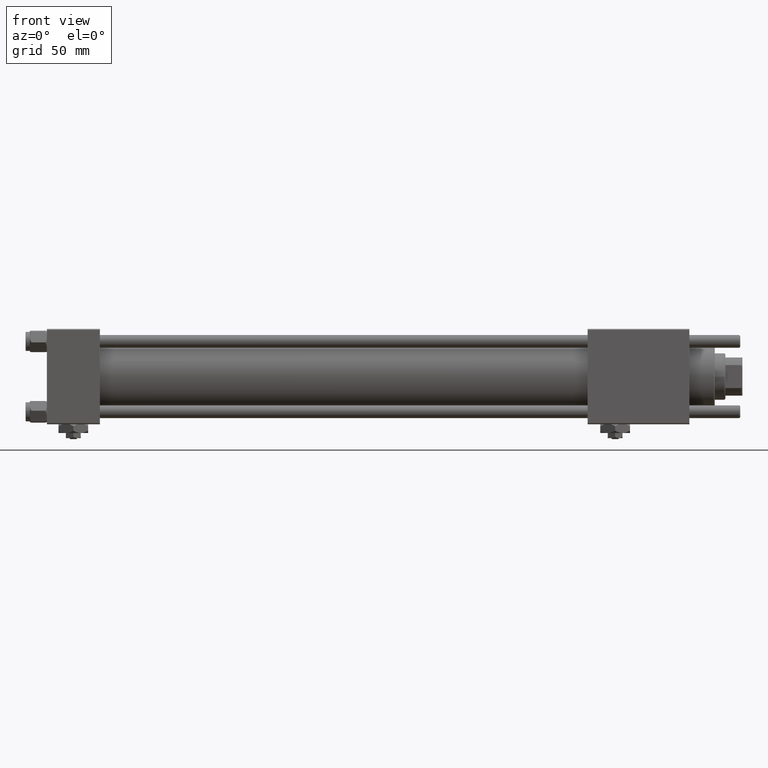
[diagram: clean part render]
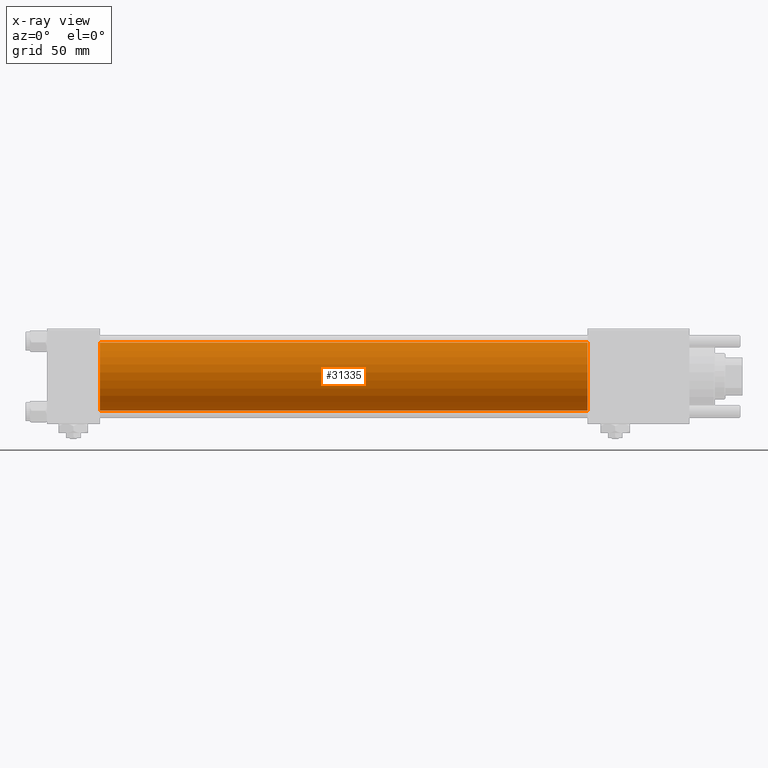
[diagram: x-ray — body ghosted, one internal face saturated and labeled with its STEP entity id]
A machine part, front view, then the same camera in x-ray: the body is ghosted and one INTERNAL B-rep face — a face not visible from any outside direction — is saturated and labeled: STEP entity #31335.
In plain terms, the highlighted cylindrical surface (edge-blend (fillet) strip) has radius 16 mm, axis along (-1, -0, -0).
Its self-contained STEP definition (entity closure, byte-faithful):
#1636 = VERTEX_POINT ( 'NONE', #17332 ) ;
#2756 = ORIENTED_EDGE ( 'NONE', *, *, #19227, .F. ) ;
#3265 = DIRECTION ( 'NONE',  ( -1.000000000000000000, -0.000000000000000000, -0.000000000000000000 ) ) ;
#8566 = VERTEX_POINT ( 'NONE', #47317 ) ;
#11234 = EDGE_LOOP ( 'NONE', ( #20074, #56550, #2756, #27775 ) ) ;
#14798 = CARTESIAN_POINT ( 'NONE',  ( 255.0000000000000000, -2.602085213965210642E-15, 0.000000000000000000 ) ) ;
#15155 = CARTESIAN_POINT ( 'NONE',  ( 255.0000000000000000, -6.426503353294456087E-16, -16.00000000000000000 ) ) ;
#17332 = CARTESIAN_POINT ( 'NONE',  ( 255.0000000000000000, -2.602085213965210642E-15, 16.00000000000000000 ) ) ;
#17984 = CIRCLE ( 'NONE', #32540, 16.00000000000000000 ) ;
#19227 = EDGE_CURVE ( 'NONE', #22154, #8566, #55756, .T. ) ;
#19968 = EDGE_CURVE ( 'NONE', #1636, #59616, #17984, .T. ) ;
#20074 = ORIENTED_EDGE ( 'NONE', *, *, #19968, .T. ) ;
#20539 = DIRECTION ( 'NONE',  ( 0.000000000000000000, 0.000000000000000000, -1.000000000000000000 ) ) ;
#21767 = FACE_OUTER_BOUND ( 'NONE', #11234, .T. ) ;
#22017 = CARTESIAN_POINT ( 'NONE',  ( 25.00000000000000000, -2.602085213965210642E-15, 0.000000000000000000 ) ) ;
#22021 = CARTESIAN_POINT ( 'NONE',  ( 25.00000000000000000, -2.602085213965210642E-15, 16.00000000000000000 ) ) ;
#22154 = VERTEX_POINT ( 'NONE', #22021 ) ;
#23556 = VECTOR ( 'NONE', #56141, 1000.000000000000000 ) ;
#23981 = LINE ( 'NONE', #46167, #23556 ) ;
#25108 = DIRECTION ( 'NONE',  ( 1.000000000000000000, 0.000000000000000000, 0.000000000000000000 ) ) ;
#26390 = DIRECTION ( 'NONE',  ( -1.000000000000000000, -0.000000000000000000, -0.000000000000000000 ) ) ;
#26870 = DIRECTION ( 'NONE',  ( 0.000000000000000000, 0.000000000000000000, -1.000000000000000000 ) ) ;
#27775 = ORIENTED_EDGE ( 'NONE', *, *, #53711, .F. ) ;
#30578 = CARTESIAN_POINT ( 'NONE',  ( 255.0000000000000000, -2.602085213965210642E-15, 0.000000000000000000 ) ) ;
#31335 = ADVANCED_FACE ( 'NONE', ( #21767 ), #39973, .F. ) ;
#32540 = AXIS2_PLACEMENT_3D ( 'NONE', #14798, #25108, #20539 ) ;
#39973 = CYLINDRICAL_SURFACE ( 'NONE', #50523, 16.00000000000000000 ) ;
#42697 = EDGE_CURVE ( 'NONE', #59616, #8566, #23981, .T. ) ;
#43949 = DIRECTION ( 'NONE',  ( 0.000000000000000000, 0.000000000000000000, 1.000000000000000000 ) ) ;
#45683 = DIRECTION ( 'NONE',  ( 1.000000000000000000, 0.000000000000000000, 0.000000000000000000 ) ) ;
#46167 = CARTESIAN_POINT ( 'NONE',  ( 255.0000000000000000, -6.426503353294456087E-16, -16.00000000000000000 ) ) ;
#47052 = AXIS2_PLACEMENT_3D ( 'NONE', #22017, #45683, #26870 ) ;
#47317 = CARTESIAN_POINT ( 'NONE',  ( 25.00000000000000000, -6.426503353294456087E-16, -16.00000000000000000 ) ) ;
#48863 = LINE ( 'NONE', #58557, #50940 ) ;
#50523 = AXIS2_PLACEMENT_3D ( 'NONE', #30578, #3265, #43949 ) ;
#50940 = VECTOR ( 'NONE', #26390, 1000.000000000000000 ) ;
#53711 = EDGE_CURVE ( 'NONE', #1636, #22154, #48863, .T. ) ;
#55756 = CIRCLE ( 'NONE', #47052, 16.00000000000000000 ) ;
#56141 = DIRECTION ( 'NONE',  ( -1.000000000000000000, -0.000000000000000000, -0.000000000000000000 ) ) ;
#56550 = ORIENTED_EDGE ( 'NONE', *, *, #42697, .T. ) ;
#58557 = CARTESIAN_POINT ( 'NONE',  ( 255.0000000000000000, -2.602085213965210642E-15, 16.00000000000000000 ) ) ;
#59616 = VERTEX_POINT ( 'NONE', #15155 ) ;